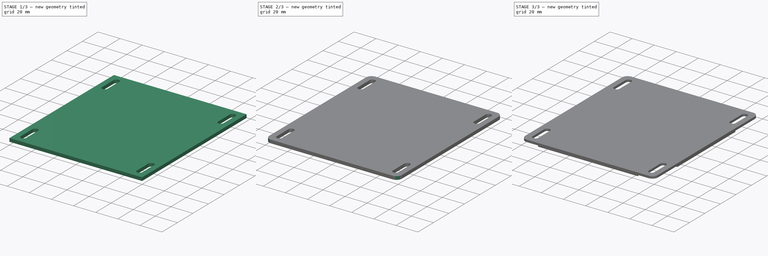
[diagram: build sequence overview — one tinted view per stage of 3, left to right]
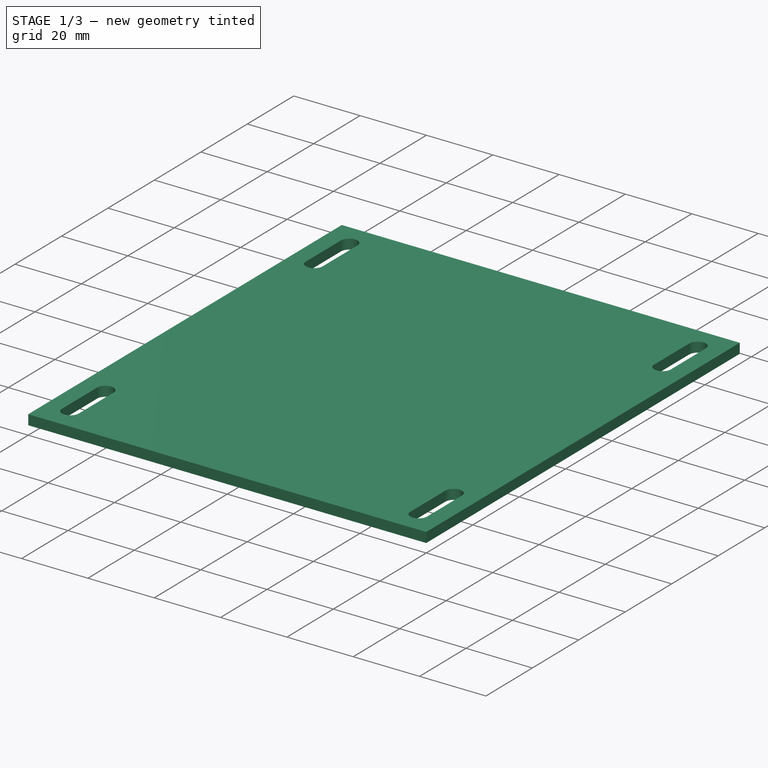
[diagram: stage 1 of 3 — iso view after this stage's code; geometry added in this stage tinted green]
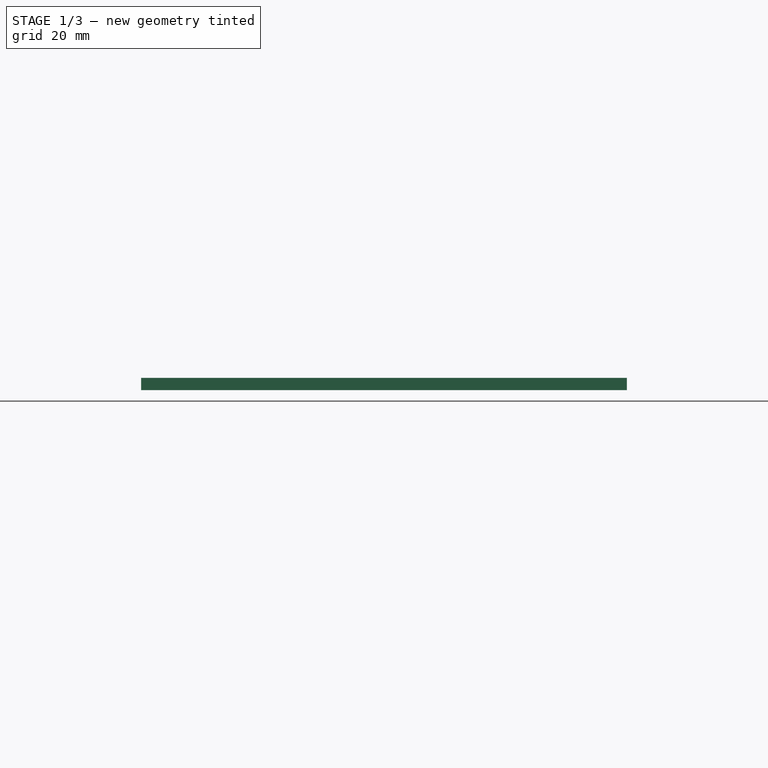
[diagram: stage 1 of 3 — front view after this stage's code; geometry added in this stage tinted green]
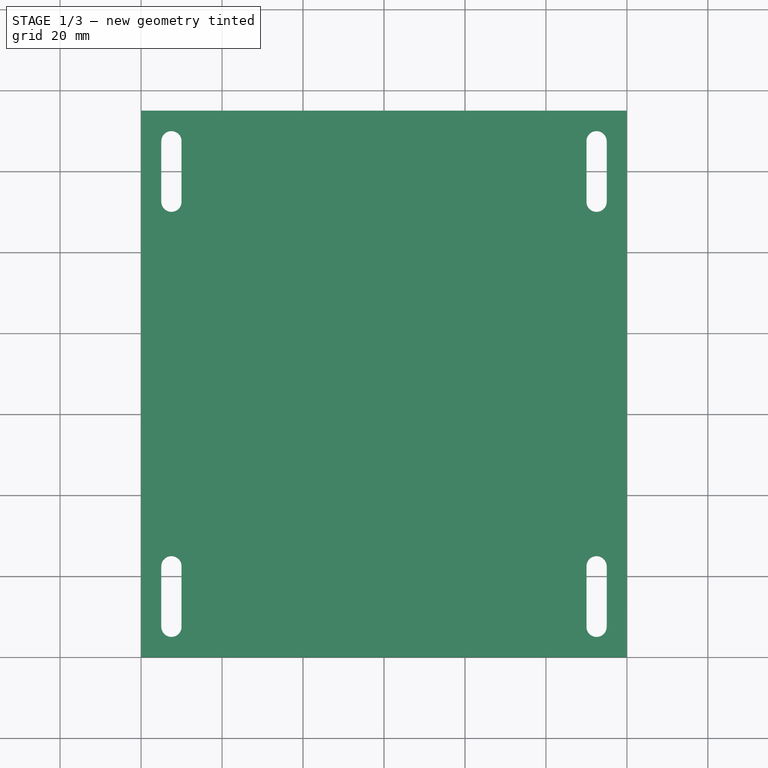
[diagram: stage 1 of 3 — top view after this stage's code; geometry added in this stage tinted green]
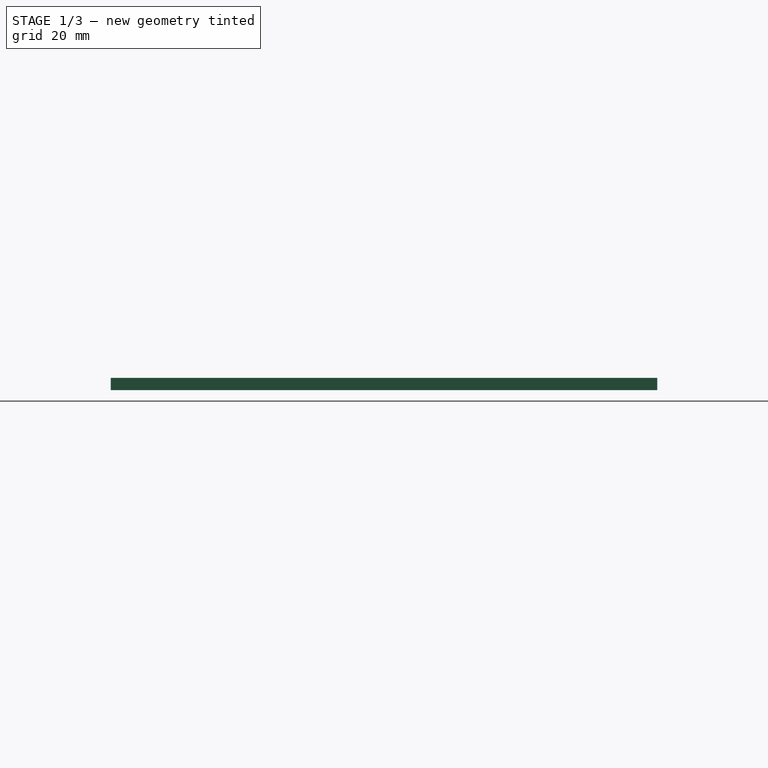
[diagram: stage 1 of 3 — right view after this stage's code; geometry added in this stage tinted green]
FCSTD DOCUMENT  (FreeCAD 0.19R24267 +99 (Git))
Label: fan_cover
License: All rights reserved
LicenseURL: http://en.wikipedia.org/wiki/All_rights_reserved
objects: Sketcher::SketchObject×3, PartDesign::Pocket×2, PartDesign::Fillet×2, PartDesign::Pad×1, PartDesign::Body×1
note: 14 computed .brp shape members not serialized (recipe doc carries the construction recipe); baked Part::Feature solids carry a one-line shape summary decoded from their .brp

FEATURE [Sketcher::SketchObject] Sketch
  FullyConstrained = true
  MapMode = 5
  Support = -> [XY_Plane]
  sketch-geometry (4):
    g0: LineSegment StartX=0 StartY=0 StartZ=0 EndX=120 EndY=0 EndZ=0
    g1: LineSegment StartX=120 StartY=0 StartZ=0 EndX=120 EndY=135 EndZ=0
    g2: LineSegment StartX=120 StartY=135 StartZ=0 EndX=0 EndY=135 EndZ=0
    g3: LineSegment StartX=0 StartY=135 StartZ=0 EndX=0 EndY=0 EndZ=0
  constraints (11):
    c: Coincident(g0,g1)
    c: Coincident(g1,g2)
    c: Coincident(g2,g3)
    c: Coincident(g3,g0)
    c: Horizontal(g0)
    c: Horizontal(g2)
    c: Vertical(g1)
    c: Vertical(g3)
    c: Coincident(g0,g-1)
    c: DistanceX(g2,g2) = 120
    c: DistanceY(g3,g3) = 135
FEATURE [PartDesign::Pad] Pad
  Direction = (1,1,1)
  Length = 3
  Length2 = 100
  Profile = -> Sketch
  Type = 0
FEATURE [Sketcher::SketchObject] Sketch001
  FullyConstrained = true
  MapMode = 5
  Support = -> [XY_Plane]
  sketch-geometry (20):
    g0: ArcOfCircle CenterX=7.5 CenterY=22.5 CenterZ=0 NormalX=0 NormalY=0 NormalZ=1 AngleXU=0 Radius=2.5 StartAngle=0 EndAngle=3.14159
    g1: ArcOfCircle CenterX=7.5 CenterY=7.5 CenterZ=0 NormalX=0 NormalY=0 NormalZ=1 AngleXU=0 Radius=2.5 StartAngle=3.14159 EndAngle=6.28319
    g2: LineSegment StartX=5 StartY=22.5 StartZ=0 EndX=5 EndY=7.5 EndZ=0
    g3: LineSegment StartX=10 StartY=22.5 StartZ=0 EndX=10 EndY=7.5 EndZ=0
    g4: ArcOfCircle CenterX=112.5 CenterY=22.5 CenterZ=0 NormalX=0 NormalY=0 NormalZ=1 AngleXU=0 Radius=2.5 StartAngle=-9e-16 EndAngle=3.14159
    g5: ArcOfCircle CenterX=112.5 CenterY=7.5 CenterZ=0 NormalX=0 NormalY=0 NormalZ=1 AngleXU=0 Radius=2.5 StartAngle=3.14159 EndAngle=6.28319
    g6: LineSegment StartX=110 StartY=22.5 StartZ=0 EndX=110 EndY=7.5 EndZ=0
    g7: LineSegment StartX=115 StartY=22.5 StartZ=0 EndX=115 EndY=7.5 EndZ=0
    g8: ArcOfCircle CenterX=7.5 CenterY=127.5 CenterZ=0 NormalX=0 NormalY=0 NormalZ=1 AngleXU=0 Radius=2.5 StartAngle=8e-16 EndAngle=3.14159
    g9: ArcOfCircle CenterX=7.5 CenterY=112.5 CenterZ=0 NormalX=0 NormalY=0 NormalZ=1 AngleXU=0 Radius=2.5 StartAngle=3.14159 EndAngle=6.28319
    g10: LineSegment StartX=5 StartY=127.5 StartZ=0 EndX=5 EndY=112.5 EndZ=0
    g11: LineSegment StartX=10 StartY=127.5 StartZ=0 EndX=10 EndY=112.5 EndZ=0
    g12: ArcOfCircle CenterX=112.5 CenterY=127.5 CenterZ=0 NormalX=0 NormalY=0 NormalZ=1 AngleXU=0 Radius=2.5 StartAngle=0 EndAngle=3.14159
    g13: ArcOfCircle CenterX=112.5 CenterY=112.5 CenterZ=0 NormalX=0 NormalY=0 NormalZ=1 AngleXU=0 Radius=2.5 StartAngle=3.14159 EndAngle=6.28319
    g14: LineSegment StartX=110 StartY=127.5 StartZ=0 EndX=110 EndY=112.5 EndZ=0
    g15: LineSegment StartX=115 StartY=127.5 StartZ=0 EndX=115 EndY=112.5 EndZ=0
    g16: LineSegment StartX=7.5 StartY=130 StartZ=0 EndX=7.5 EndY=110 EndZ=0
    g17: LineSegment StartX=112.5 StartY=130 StartZ=0 EndX=112.5 EndY=110 EndZ=0
    g18: LineSegment StartX=112.5 StartY=25 StartZ=0 EndX=112.5 EndY=5 EndZ=0
    g19: LineSegment StartX=7.5 StartY=25 StartZ=0 EndX=7.5 EndY=5 EndZ=0
  constraints (56):
    c: Tangent(g0,g3) = 1.5708
    c: Tangent(g0,g2) = -1.5708
    c: Tangent(g2,g1) = -1.5708
    c: Tangent(g3,g1) = 1.5708
    c: Vertical(g2)
    c: Equal(g0,g1)
    c: DistanceX(g-1,g1) = 5
    c: DistanceX(g1,g1) = 5
    c: DistanceY(g-1,g0) = 22.5
    c: Tangent(g4,g7) = 1.5708
    c: Tangent(g4,g6) = -1.5708
    c: Tangent(g6,g5) = -1.5708
    c: Tangent(g7,g5) = 1.5708
    c: Vertical(g6)
    c: Equal(g4,g5)
    c: Tangent(g8,g11) = 1.5708
    c: Tangent(g8,g10) = -1.5708
    c: Tangent(g10,g9) = -1.5708
    c: Tangent(g11,g9) = 1.5708
    c: Vertical(g10)
    c: Equal(g8,g9)
    c: Tangent(g12,g15) = 1.5708
    c: Tangent(g12,g14) = -1.5708
    c: Tangent(g14,g13) = -1.5708
    c: Tangent(g15,g13) = 1.5708
    c: Vertical(g14)
    c: Equal(g12,g13)
    c: Equal(g0,g8)
    c: Equal(g8,g12)
    c: Equal(g12,g4)
    c: PointOnObject(g16,g8)
    c: PointOnObject(g16,g9)
    c: Vertical(g16)
    c: PointOnObject(g17,g12)
    c: PointOnObject(g17,g13)
    c: Vertical(g17)
    c: PointOnObject(g18,g4)
    c: PointOnObject(g18,g5)
    c: Vertical(g18)
    c: Perpendicular(g8,g16)
    c: Perpendicular(g12,g17)
    c: Perpendicular(g4,g18)
    c: Equal(g16,g17)
    c: Equal(g17,g18)
    c: Horizontal(g0,g4)
    c: Vertical(g4,g12)
    c: Horizontal(g8,g12)
    c: Vertical(g8,g0)
    c: DistanceX(g1,g5) = 105
    c: DistanceY(g-1,g9) = 112.5
    c: PointOnObject(g19,g0)
    c: PointOnObject(g19,g1)
    c: Vertical(g19)
    c: Perpendicular(g0,g19)
    c: DistanceY(g19,g19) = 20  'slot_hight'
    c: Equal(g19,g18)
FEATURE [PartDesign::Pocket] Pocket
  BaseFeature = -> Pad
  Length = 5
  Length2 = 100
  Profile = -> Sketch001
  Reversed = true
  Type = 0
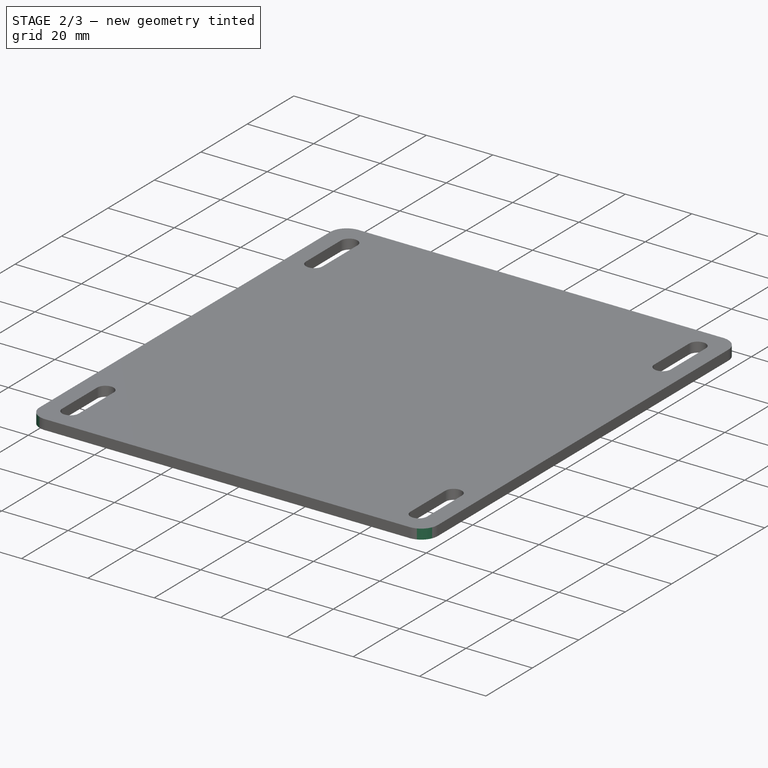
[diagram: stage 2 of 3 — iso view after this stage's code; geometry added in this stage tinted green]
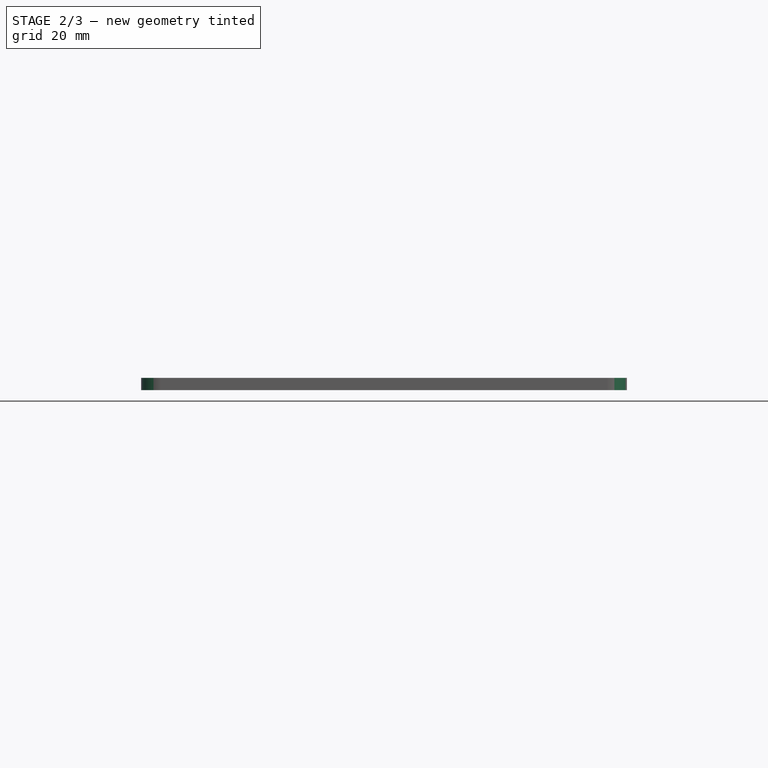
[diagram: stage 2 of 3 — front view after this stage's code; geometry added in this stage tinted green]
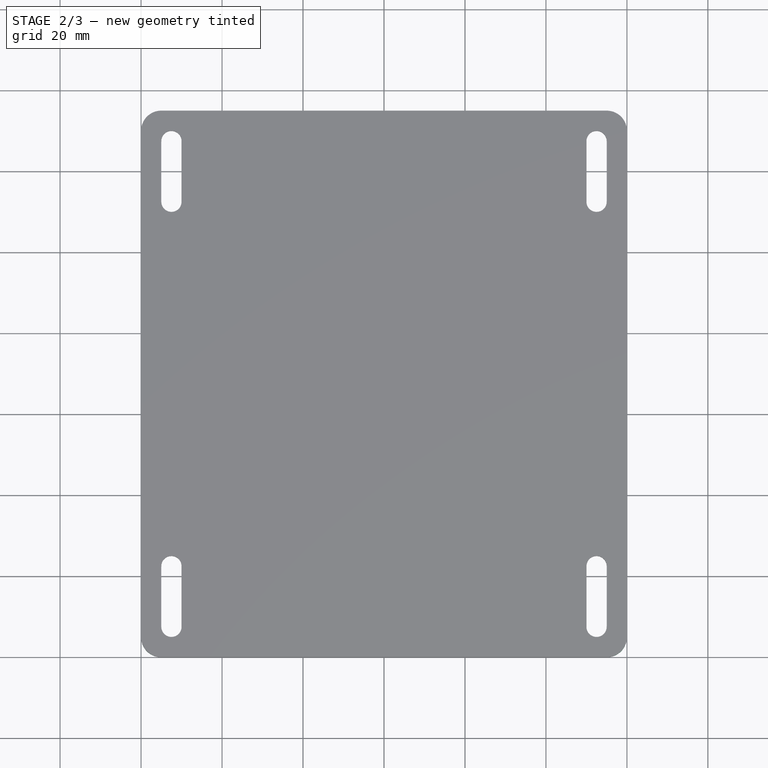
[diagram: stage 2 of 3 — top view after this stage's code; geometry added in this stage tinted green]
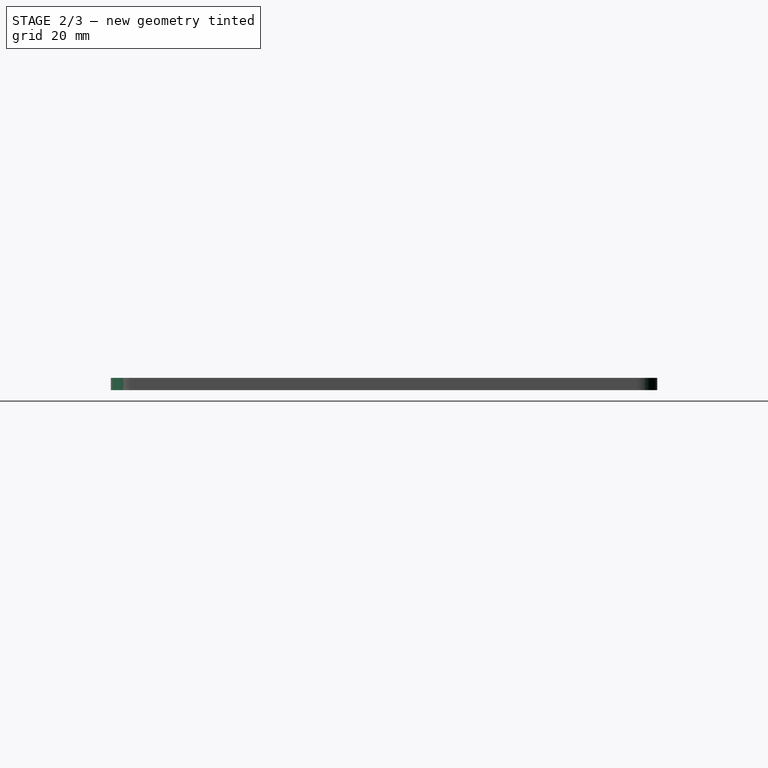
[diagram: stage 2 of 3 — right view after this stage's code; geometry added in this stage tinted green]
FEATURE [PartDesign::Fillet] Fillet
  Base = -> Pocket [Edge2,Edge8,Edge5,Edge1]
  BaseFeature = -> Pocket
  Radius = 5
  SupportTransform = false
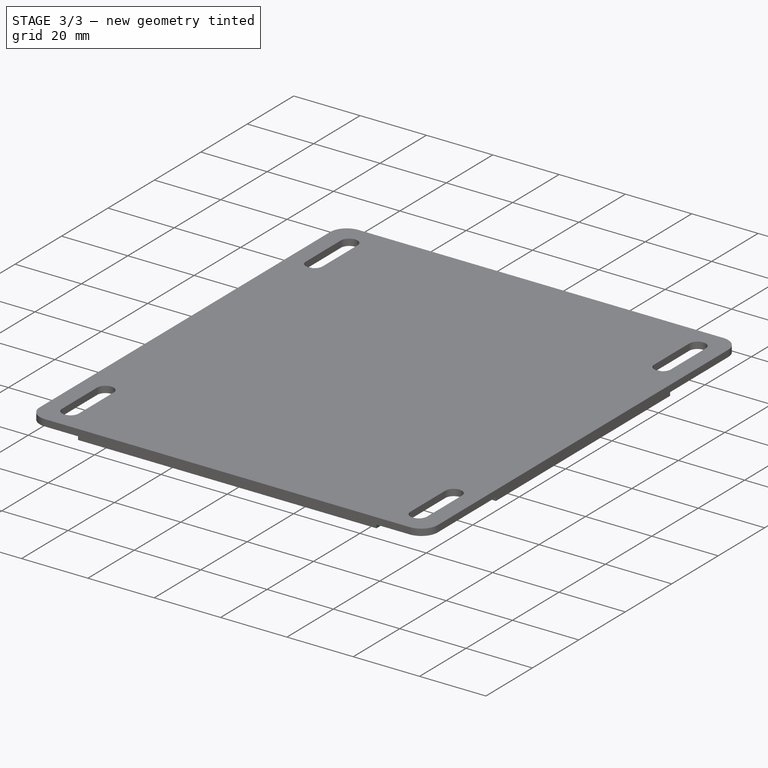
[diagram: stage 3 of 3 — iso view after this stage's code; geometry added in this stage tinted green]
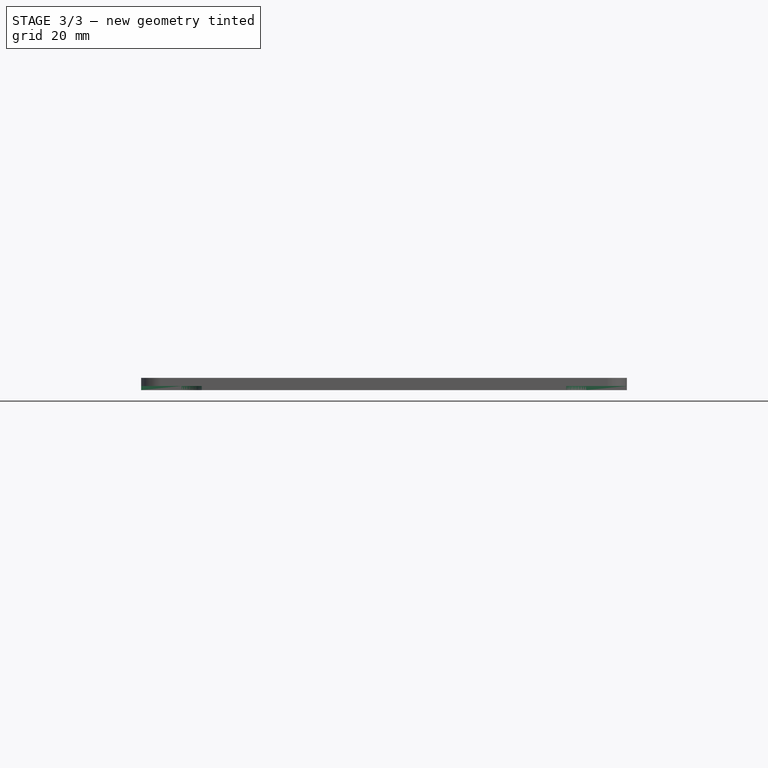
[diagram: stage 3 of 3 — front view after this stage's code; geometry added in this stage tinted green]
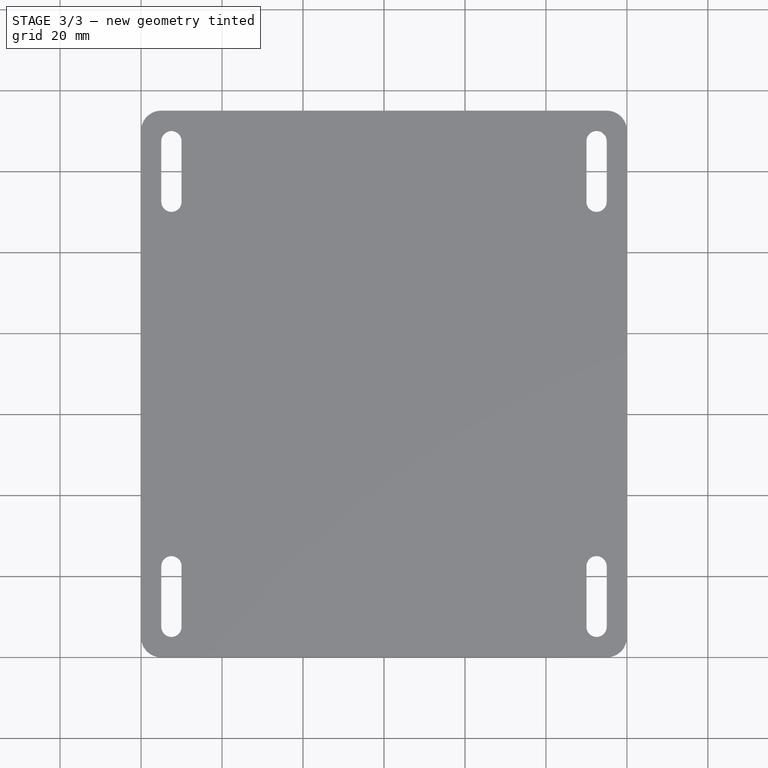
[diagram: stage 3 of 3 — top view after this stage's code; geometry added in this stage tinted green]
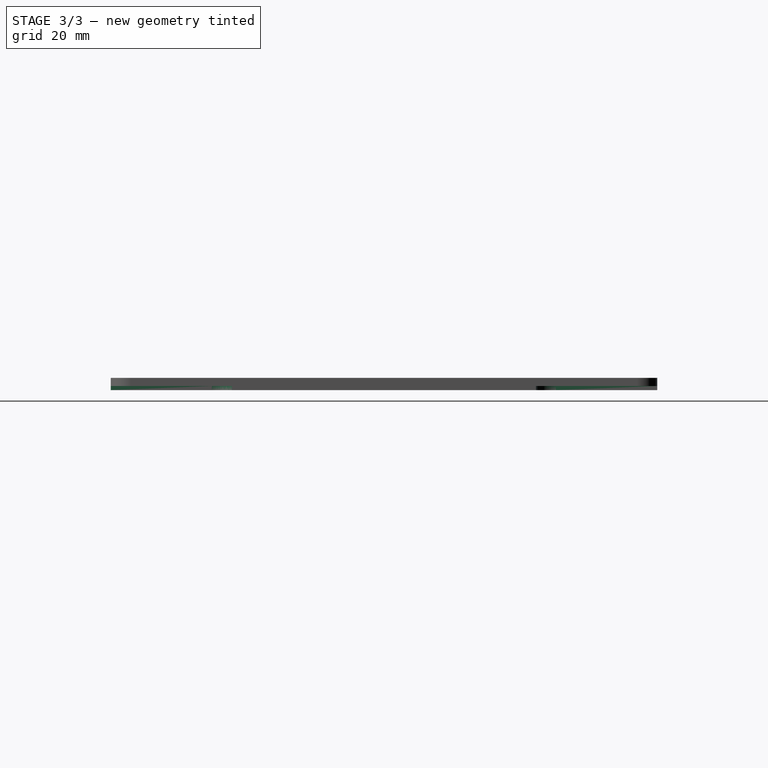
[diagram: stage 3 of 3 — right view after this stage's code; geometry added in this stage tinted green]
FEATURE [Sketcher::SketchObject] Sketch002
  FullyConstrained = true
  MapMode = 5
  Support = -> [XY_Plane]
  sketch-geometry (16):
    g0: LineSegment StartX=0 StartY=0 StartZ=0 EndX=15 EndY=0 EndZ=0
    g1: LineSegment StartX=15 StartY=0 StartZ=0 EndX=15 EndY=30 EndZ=0
    g2: LineSegment StartX=15 StartY=30 StartZ=0 EndX=0 EndY=30 EndZ=0
    g3: LineSegment StartX=0 StartY=30 StartZ=0 EndX=0 EndY=0 EndZ=0
    g4: LineSegment StartX=15 StartY=135 StartZ=0 EndX=0 EndY=135 EndZ=0
    g5: LineSegment StartX=0 StartY=135 StartZ=0 EndX=0 EndY=105 EndZ=0
    g6: LineSegment StartX=0 StartY=105 StartZ=0 EndX=15 EndY=105 EndZ=0
    g7: LineSegment StartX=15 StartY=105 StartZ=0 EndX=15 EndY=135 EndZ=0
    g8: LineSegment StartX=120 StartY=135 StartZ=0 EndX=105 EndY=135 EndZ=0
    g9: LineSegment StartX=105 StartY=135 StartZ=0 EndX=105 EndY=105 EndZ=0
    g10: LineSegment StartX=105 StartY=105 StartZ=0 EndX=120 EndY=105 EndZ=0
    g11: LineSegment StartX=120 StartY=105 StartZ=0 EndX=120 EndY=135 EndZ=0
    g12: LineSegment StartX=120 StartY=30 StartZ=0 EndX=105 EndY=30 EndZ=0
    g13: LineSegment StartX=105 StartY=30 StartZ=0 EndX=105 EndY=0 EndZ=0
    g14: LineSegment StartX=105 StartY=0 StartZ=0 EndX=120 EndY=0 EndZ=0
    g15: LineSegment StartX=120 StartY=0 StartZ=0 EndX=120 EndY=30 EndZ=0
  constraints (47):
    c: Coincident(g0,g1)
    c: Coincident(g1,g2)
    c: Coincident(g2,g3)
    c: Coincident(g3,g0)
    c: Horizontal(g0)
    c: Horizontal(g2)
    c: Vertical(g1)
    c: Vertical(g3)
    c: Coincident(g0,g-1)
    c: DistanceX(g2,g2) = 15
    c: DistanceY(g3,g3) = 30
    c: Coincident(g4,g5)
    c: Coincident(g5,g6)
    c: Coincident(g6,g7)
    c: Coincident(g7,g4)
    c: Horizontal(g4)
    c: Horizontal(g6)
    c: Vertical(g5)
    c: Vertical(g7)
    c: PointOnObject(g5,g-2)
    c: Coincident(g8,g9)
    c: Coincident(g9,g10)
    c: Coincident(g10,g11)
    c: Coincident(g11,g8)
    c: Horizontal(g8)
    c: Horizontal(g10)
    c: Vertical(g9)
    c: Vertical(g11)
    c: Coincident(g12,g13)
    c: Coincident(g13,g14)
    c: Coincident(g14,g15)
    c: Coincident(g15,g12)
    c: Horizontal(g12)
    c: Horizontal(g14)
    c: Vertical(g13)
    c: Vertical(g15)
    c: Equal(g3,g13)
    c: Equal(g13,g9)
    c: Equal(g9,g5)
    c: Equal(g2,g6)
    c: Equal(g6,g10)
    c: Equal(g10,g12)
    c: PointOnObject(g13,g-1)
    c: Vertical(g12,g9)
    c: Horizontal(g6,g9)
    c: DistanceX(g0,g8) = 120
    c: DistanceY(g0,g8) = 135
FEATURE [PartDesign::Pocket] Pocket001
  BaseFeature = -> Fillet
  Length = 1
  Length2 = 100
  Profile = -> Sketch002
  Reversed = true
  Type = 0
FEATURE [PartDesign::Fillet] Fillet001
  Base = -> Pocket001 [Edge67,Edge76,Edge20,Edge62]
  BaseFeature = -> Pocket001
  Radius = 5
  SupportTransform = false
FEATURE [PartDesign::Body] Body
  Group = -> [Sketch,Pad,Sketch001,Pocket,Fillet,Sketch002,Pocket001,Fillet001]
  Origin = -> Origin
  Tip = -> Fillet001
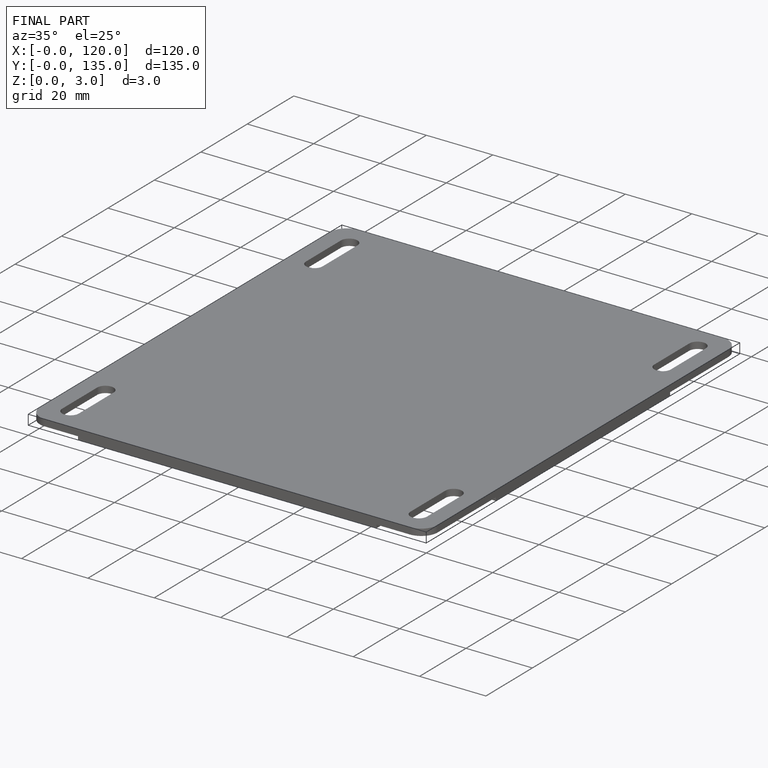
[diagram: finished part — iso view with bounding-box wireframe]
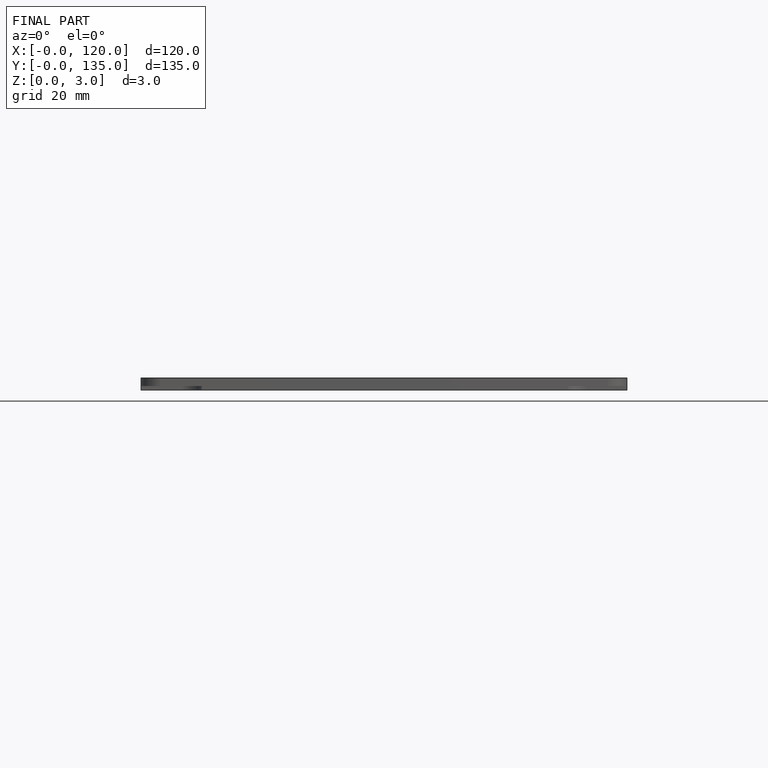
[diagram: finished part — front view with bounding-box wireframe]
